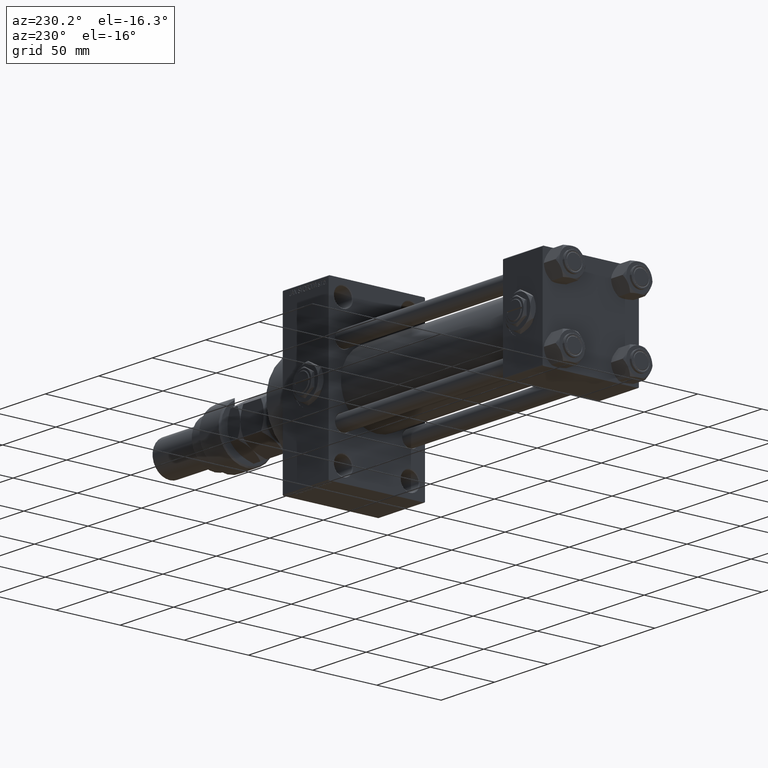
[diagram: clean part render]
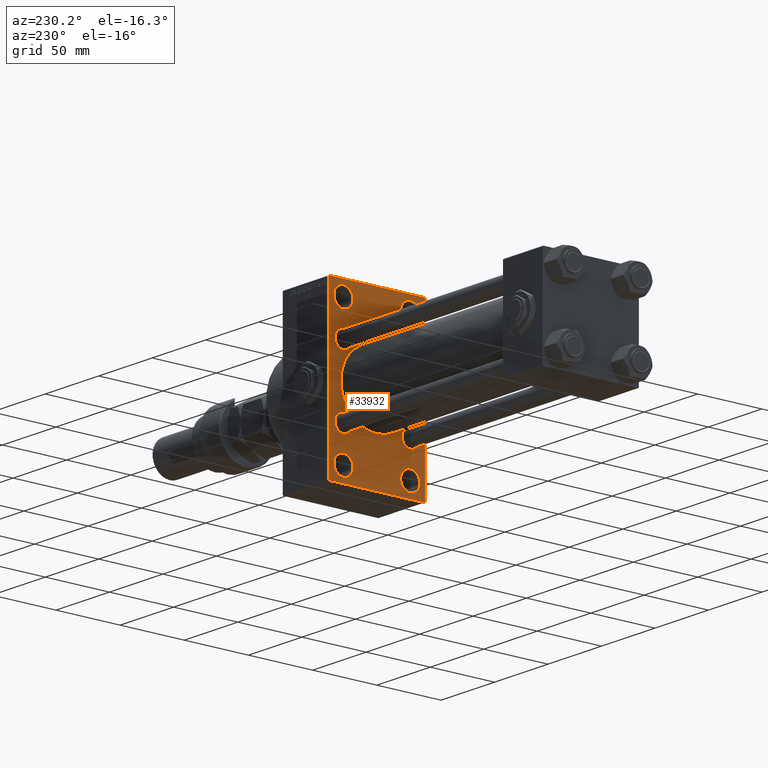
[diagram: same view with one face highlighted and labeled with its STEP entity id]
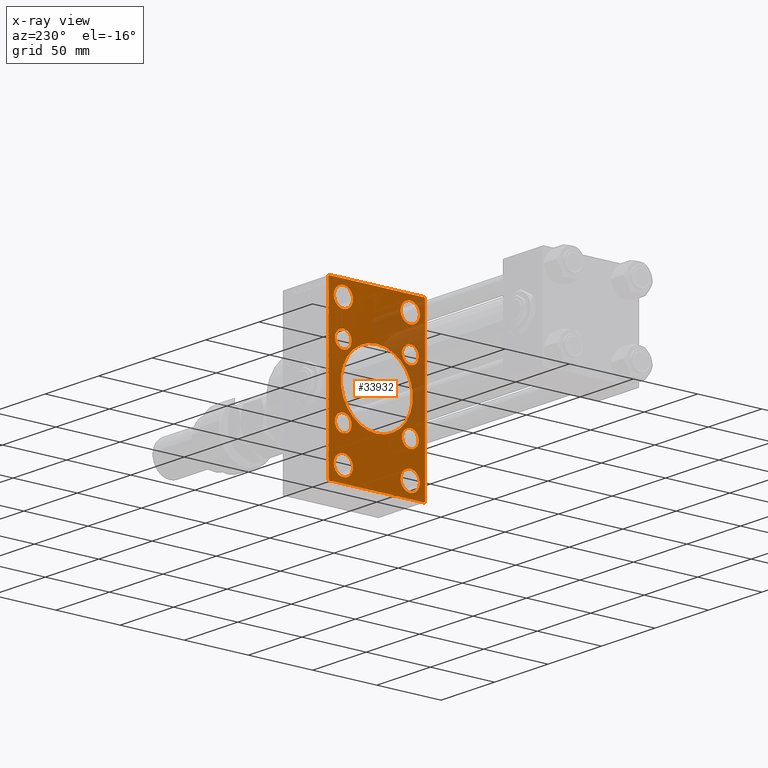
[diagram: x-ray of the same camera — body ghosted, the highlighted face saturated]
A machine part, auxiliary view. The second image highlights one B-rep face of the part: STEP entity #33932.
The next image is the same camera in x-ray: the body ghosted, the highlighted face saturated — about 21% of this face is hidden behind the body in this view.
In plain terms, the highlighted planar face has unit normal (-1, 0, 0).
Its self-contained STEP definition (entity closure, byte-faithful):
#121 = DIRECTION ( 'NONE',  ( 1.000000000000000000, -0.000000000000000000, 0.000000000000000000 ) ) ;
#1658 = VERTEX_POINT ( 'NONE', #31273 ) ;
#1690 = CARTESIAN_POINT ( 'NONE',  ( 200.0000000000000000, 37.49999999999999289, -64.00000000000000000 ) ) ;
#1700 = ORIENTED_EDGE ( 'NONE', *, *, #30654, .T. ) ;
#1946 = DIRECTION ( 'NONE',  ( 0.000000000000000000, -1.000000000000000000, -1.850371707708594563E-16 ) ) ;
#2157 = VECTOR ( 'NONE', #15879, 999.9999999999998863 ) ;
#2424 = LINE ( 'NONE', #20670, #4872 ) ;
#2442 = AXIS2_PLACEMENT_3D ( 'NONE', #48156, #11810, #40218 ) ;
#2492 = LINE ( 'NONE', #43877, #9111 ) ;
#2524 = FACE_BOUND ( 'NONE', #19531, .T. ) ;
#2670 = VERTEX_POINT ( 'NONE', #49018 ) ;
#3048 = PLANE ( 'NONE',  #33940 ) ;
#3191 = EDGE_LOOP ( 'NONE', ( #49239, #24765 ) ) ;
#3253 = ORIENTED_EDGE ( 'NONE', *, *, #46008, .T. ) ;
#3731 = VERTEX_POINT ( 'NONE', #7202 ) ;
#4059 = ORIENTED_EDGE ( 'NONE', *, *, #13224, .F. ) ;
#4125 = AXIS2_PLACEMENT_3D ( 'NONE', #14606, #7179, #52006 ) ;
#4395 = DIRECTION ( 'NONE',  ( 0.000000000000000000, 0.000000000000000000, 1.000000000000000000 ) ) ;
#4449 = VECTOR ( 'NONE', #49513, 1000.000000000000000 ) ;
#4511 = DIRECTION ( 'NONE',  ( 0.000000000000000000, 0.000000000000000000, 1.000000000000000000 ) ) ;
#4872 = VECTOR ( 'NONE', #8720, 1000.000000000000114 ) ;
#4893 = DIRECTION ( 'NONE',  ( 1.000000000000000000, -0.000000000000000000, 0.000000000000000000 ) ) ;
#4929 = CIRCLE ( 'NONE', #10854, 7.500000000000007105 ) ;
#4956 = CIRCLE ( 'NONE', #4125, 6.500000000000008882 ) ;
#5295 = ORIENTED_EDGE ( 'NONE', *, *, #42075, .T. ) ;
#5608 = VERTEX_POINT ( 'NONE', #41219 ) ;
#5745 = ORIENTED_EDGE ( 'NONE', *, *, #45970, .T. ) ;
#5983 = CARTESIAN_POINT ( 'NONE',  ( 200.0000000000000000, -50.49999999999972999, 50.50000000000042633 ) ) ;
#5988 = DIRECTION ( 'NONE',  ( 0.000000000000000000, 0.000000000000000000, 1.000000000000000000 ) ) ;
#7041 = FACE_BOUND ( 'NONE', #35056, .T. ) ;
#7179 = DIRECTION ( 'NONE',  ( 1.000000000000000000, -0.000000000000000000, 0.000000000000000000 ) ) ;
#7202 = CARTESIAN_POINT ( 'NONE',  ( 200.0000000000000000, 26.14999999999999858, -32.65000000000001279 ) ) ;
#7256 = CARTESIAN_POINT ( 'NONE',  ( 200.0000000000000000, 26.00000000000000000, -44.99999999999998579 ) ) ;
#7302 = FACE_BOUND ( 'NONE', #48529, .T. ) ;
#7384 = EDGE_LOOP ( 'NONE', ( #11506, #37115 ) ) ;
#7864 = DIRECTION ( 'NONE',  ( 1.000000000000000000, -0.000000000000000000, 0.000000000000000000 ) ) ;
#7878 = DIRECTION ( 'NONE',  ( 1.000000000000000000, 0.000000000000000000, 0.000000000000000000 ) ) ;
#8138 = CARTESIAN_POINT ( 'NONE',  ( 200.0000000000000000, -2.602085213965210642E-15, 0.000000000000000000 ) ) ;
#8419 = CIRCLE ( 'NONE', #37204, 7.500000000000007105 ) ;
#8461 = EDGE_LOOP ( 'NONE', ( #9089, #26974 ) ) ;
#8720 = DIRECTION ( 'NONE',  ( 0.000000000000000000, -0.7071067811865376918, 0.7071067811865573427 ) ) ;
#8851 = ORIENTED_EDGE ( 'NONE', *, *, #26196, .F. ) ;
#9089 = ORIENTED_EDGE ( 'NONE', *, *, #31137, .T. ) ;
#9111 = VECTOR ( 'NONE', #27705, 1000.000000000000114 ) ;
#9212 = VERTEX_POINT ( 'NONE', #11317 ) ;
#9580 = AXIS2_PLACEMENT_3D ( 'NONE', #34652, #26685, #50816 ) ;
#9664 = VERTEX_POINT ( 'NONE', #45634 ) ;
#9727 = CARTESIAN_POINT ( 'NONE',  ( 200.0000000000000000, -37.49999999999999289, -63.50000000000002842 ) ) ;
#9878 = CARTESIAN_POINT ( 'NONE',  ( 200.0000000000000000, -2.602085213965210642E-15, 28.00000000000000000 ) ) ;
#9959 = AXIS2_PLACEMENT_3D ( 'NONE', #18618, #51497, #50975 ) ;
#10076 = AXIS2_PLACEMENT_3D ( 'NONE', #18324, #51208, #42218 ) ;
#10120 = AXIS2_PLACEMENT_3D ( 'NONE', #33034, #44705, #21073 ) ;
#10258 = EDGE_CURVE ( 'NONE', #1658, #49600, #34125, .T. ) ;
#10758 = AXIS2_PLACEMENT_3D ( 'NONE', #8138, #7878, #16092 ) ;
#10854 = AXIS2_PLACEMENT_3D ( 'NONE', #39421, #42604, #5988 ) ;
#11281 = FACE_BOUND ( 'NONE', #19023, .T. ) ;
#11317 = CARTESIAN_POINT ( 'NONE',  ( 200.0000000000000000, 37.00000000000004974, -64.00000000000000000 ) ) ;
#11375 = LINE ( 'NONE', #32076, #2157 ) ;
#11506 = ORIENTED_EDGE ( 'NONE', *, *, #27712, .T. ) ;
#11556 = CARTESIAN_POINT ( 'NONE',  ( 200.0000000000000000, 26.00000000000000000, -52.49999999999999289 ) ) ;
#11792 = CARTESIAN_POINT ( 'NONE',  ( 200.0000000000000000, -25.99999999999999645, -52.49999999999999289 ) ) ;
#11810 = DIRECTION ( 'NONE',  ( 1.000000000000000000, -0.000000000000000000, 0.000000000000000000 ) ) ;
#12161 = CARTESIAN_POINT ( 'NONE',  ( 200.0000000000000000, 8.269258236473784371E-16, -28.00000000000000000 ) ) ;
#12524 = EDGE_CURVE ( 'NONE', #13988, #44733, #29895, .T. ) ;
#12696 = DIRECTION ( 'NONE',  ( 0.000000000000000000, -5.421010862427522170E-17, -1.000000000000000000 ) ) ;
#12848 = CARTESIAN_POINT ( 'NONE',  ( 200.0000000000000000, -26.14999999999999147, -26.15000000000000924 ) ) ;
#13224 = EDGE_CURVE ( 'NONE', #13988, #20082, #49267, .T. ) ;
#13321 = VERTEX_POINT ( 'NONE', #18195 ) ;
#13837 = EDGE_CURVE ( 'NONE', #9212, #5608, #25826, .T. ) ;
#13988 = VERTEX_POINT ( 'NONE', #18836 ) ;
#14606 = CARTESIAN_POINT ( 'NONE',  ( 200.0000000000000000, -26.14999999999999147, 26.15000000000000924 ) ) ;
#14921 = EDGE_CURVE ( 'NONE', #36669, #37837, #35051, .T. ) ;
#14949 = CARTESIAN_POINT ( 'NONE',  ( 200.0000000000000000, 37.49999999999999289, -63.50000000000007105 ) ) ;
#14964 = DIRECTION ( 'NONE',  ( 0.000000000000000000, 0.000000000000000000, 1.000000000000000000 ) ) ;
#15361 = EDGE_CURVE ( 'NONE', #40034, #3731, #38438, .T. ) ;
#15879 = DIRECTION ( 'NONE',  ( -0.000000000000000000, -0.7071067811865574537, -0.7071067811865376918 ) ) ;
#16032 = CIRCLE ( 'NONE', #22794, 7.500000000000007105 ) ;
#16092 = DIRECTION ( 'NONE',  ( 0.000000000000000000, 0.000000000000000000, -1.000000000000000000 ) ) ;
#16318 = DIRECTION ( 'NONE',  ( 0.000000000000000000, 0.000000000000000000, 1.000000000000000000 ) ) ;
#16857 = AXIS2_PLACEMENT_3D ( 'NONE', #18450, #50812, #50041 ) ;
#17124 = CARTESIAN_POINT ( 'NONE',  ( 200.0000000000000000, 26.00000000000000000, 44.99999999999998579 ) ) ;
#17581 = CARTESIAN_POINT ( 'NONE',  ( 200.0000000000000000, -26.14999999999999147, -19.65000000000000213 ) ) ;
#17595 = AXIS2_PLACEMENT_3D ( 'NONE', #27442, #31150, #14964 ) ;
#17825 = CIRCLE ( 'NONE', #38185, 7.500000000000007105 ) ;
#17862 = DIRECTION ( 'NONE',  ( 1.000000000000000000, -0.000000000000000000, 0.000000000000000000 ) ) ;
#18087 = ORIENTED_EDGE ( 'NONE', *, *, #33356, .T. ) ;
#18195 = CARTESIAN_POINT ( 'NONE',  ( 200.0000000000000000, -25.99999999999999645, 60.00000000000000711 ) ) ;
#18324 = CARTESIAN_POINT ( 'NONE',  ( 200.0000000000000000, 26.14999999999999858, 26.15000000000000213 ) ) ;
#18450 = CARTESIAN_POINT ( 'NONE',  ( 200.0000000000000000, -25.99999999999999645, 52.50000000000000000 ) ) ;
#18618 = CARTESIAN_POINT ( 'NONE',  ( 200.0000000000000000, 26.14999999999999858, -26.15000000000000213 ) ) ;
#18798 = VECTOR ( 'NONE', #37341, 1000.000000000000000 ) ;
#18836 = CARTESIAN_POINT ( 'NONE',  ( 200.0000000000000000, -37.49999999999999289, 63.50000000000000000 ) ) ;
#18983 = CARTESIAN_POINT ( 'NONE',  ( 200.0000000000000000, 0.000000000000000000, 0.000000000000000000 ) ) ;
#19023 = EDGE_LOOP ( 'NONE', ( #24864, #38616 ) ) ;
#19400 = VERTEX_POINT ( 'NONE', #48282 ) ;
#19531 = EDGE_LOOP ( 'NONE', ( #23144, #22155 ) ) ;
#20082 = VERTEX_POINT ( 'NONE', #9727 ) ;
#20533 = CIRCLE ( 'NONE', #47629, 7.500000000000007105 ) ;
#20573 = DIRECTION ( 'NONE',  ( 0.000000000000000000, 0.000000000000000000, 1.000000000000000000 ) ) ;
#20670 = CARTESIAN_POINT ( 'NONE',  ( 200.0000000000000000, -50.50000000000054001, -50.49999999999913314 ) ) ;
#20764 = CARTESIAN_POINT ( 'NONE',  ( 200.0000000000000000, 26.14999999999999858, 19.64999999999999147 ) ) ;
#21073 = DIRECTION ( 'NONE',  ( 0.000000000000000000, 0.000000000000000000, -1.000000000000000000 ) ) ;
#21089 = CIRCLE ( 'NONE', #2442, 6.500000000000008882 ) ;
#21169 = EDGE_LOOP ( 'NONE', ( #42802, #18087 ) ) ;
#21686 = DIRECTION ( 'NONE',  ( 1.000000000000000000, -0.000000000000000000, 0.000000000000000000 ) ) ;
#22137 = CARTESIAN_POINT ( 'NONE',  ( 200.0000000000000000, -26.14999999999999147, -32.65000000000001990 ) ) ;
#22155 = ORIENTED_EDGE ( 'NONE', *, *, #33784, .T. ) ;
#22733 = VERTEX_POINT ( 'NONE', #42624 ) ;
#22794 = AXIS2_PLACEMENT_3D ( 'NONE', #11556, #7864, #4395 ) ;
#23144 = ORIENTED_EDGE ( 'NONE', *, *, #25668, .T. ) ;
#23235 = VERTEX_POINT ( 'NONE', #42041 ) ;
#23597 = VECTOR ( 'NONE', #49583, 1000.000000000000000 ) ;
#23669 = AXIS2_PLACEMENT_3D ( 'NONE', #12848, #17862, #37004 ) ;
#23978 = VERTEX_POINT ( 'NONE', #37318 ) ;
#24158 = CARTESIAN_POINT ( 'NONE',  ( 200.0000000000000000, 26.00000000000000000, 52.49999999999999289 ) ) ;
#24159 = EDGE_CURVE ( 'NONE', #19400, #9664, #2492, .T. ) ;
#24738 = CARTESIAN_POINT ( 'NONE',  ( 200.0000000000000000, -25.99999999999999645, -60.00000000000000000 ) ) ;
#24765 = ORIENTED_EDGE ( 'NONE', *, *, #32869, .T. ) ;
#24864 = ORIENTED_EDGE ( 'NONE', *, *, #25955, .T. ) ;
#25668 = EDGE_CURVE ( 'NONE', #23978, #29132, #4929, .T. ) ;
#25667 = AXIS2_PLACEMENT_3D ( 'NONE', #32569, #44750, #48727 ) ;
#25826 = LINE ( 'NONE', #1690, #40105 ) ;
#25955 = EDGE_CURVE ( 'NONE', #23235, #47594, #4956, .T. ) ;
#26196 = EDGE_CURVE ( 'NONE', #19400, #44733, #33430, .T. ) ;
#26291 = EDGE_LOOP ( 'NONE', ( #1700, #35587 ) ) ;
#26685 = DIRECTION ( 'NONE',  ( 1.000000000000000000, -0.000000000000000000, 0.000000000000000000 ) ) ;
#26974 = ORIENTED_EDGE ( 'NONE', *, *, #14921, .T. ) ;
#27442 = CARTESIAN_POINT ( 'NONE',  ( 200.0000000000000000, 26.14999999999999858, 26.15000000000000213 ) ) ;
#27471 = FACE_BOUND ( 'NONE', #26291, .T. ) ;
#27705 = DIRECTION ( 'NONE',  ( 0.000000000000000000, 0.7071067811865474617, -0.7071067811865474617 ) ) ;
#27712 = EDGE_CURVE ( 'NONE', #49600, #1658, #16032, .T. ) ;
#27833 = VERTEX_POINT ( 'NONE', #17124 ) ;
#27904 = VERTEX_POINT ( 'NONE', #14949 ) ;
#28407 = DIRECTION ( 'NONE',  ( 1.000000000000000000, -0.000000000000000000, 0.000000000000000000 ) ) ;
#28589 = CARTESIAN_POINT ( 'NONE',  ( 200.0000000000000000, -37.49999999999999289, 63.99999999999997158 ) ) ;
#28594 = CARTESIAN_POINT ( 'NONE',  ( 200.0000000000000000, 26.14999999999999858, -19.64999999999999503 ) ) ;
#28877 = AXIS2_PLACEMENT_3D ( 'NONE', #24158, #40349, #4511 ) ;
#28946 = CARTESIAN_POINT ( 'NONE',  ( 200.0000000000000000, 26.14999999999999858, -26.15000000000000213 ) ) ;
#29132 = VERTEX_POINT ( 'NONE', #24738 ) ;
#29895 = LINE ( 'NONE', #5983, #18798 ) ;
#30531 = CIRCLE ( 'NONE', #28877, 7.500000000000007105 ) ;
#30654 = EDGE_CURVE ( 'NONE', #13321, #44262, #46485, .T. ) ;
#30813 = EDGE_CURVE ( 'NONE', #44262, #13321, #8419, .T. ) ;
#30869 = EDGE_CURVE ( 'NONE', #47594, #23235, #21089, .T. ) ;
#31137 = EDGE_CURVE ( 'NONE', #37837, #36669, #32997, .T. ) ;
#31150 = DIRECTION ( 'NONE',  ( 1.000000000000000000, -0.000000000000000000, 0.000000000000000000 ) ) ;
#31273 = CARTESIAN_POINT ( 'NONE',  ( 200.0000000000000000, 26.00000000000000000, -60.00000000000000000 ) ) ;
#32076 = CARTESIAN_POINT ( 'NONE',  ( 200.0000000000000000, 50.49999999999950973, -50.50000000000090949 ) ) ;
#32569 = CARTESIAN_POINT ( 'NONE',  ( 200.0000000000000000, 26.00000000000000000, -52.49999999999999289 ) ) ;
#32867 = CARTESIAN_POINT ( 'NONE',  ( 200.0000000000000000, 37.50000000000000000, 63.99999999999998579 ) ) ;
#32869 = EDGE_CURVE ( 'NONE', #36589, #38727, #48287, .T. ) ;
#32997 = CIRCLE ( 'NONE', #23669, 6.500000000000008882 ) ;
#33034 = CARTESIAN_POINT ( 'NONE',  ( 200.0000000000000000, -2.602085213965210642E-15, 0.000000000000000000 ) ) ;
#33356 = EDGE_CURVE ( 'NONE', #27833, #2670, #30531, .T. ) ;
#33430 = LINE ( 'NONE', #46128, #23597 ) ;
#33784 = EDGE_CURVE ( 'NONE', #29132, #23978, #17825, .T. ) ;
#33932 = ADVANCED_FACE ( 'NONE', ( #27471, #2524, #35705, #34909, #11281, #7302, #7041, #51869, #46828, #51074 ), #3048, .T. ) ;
#33940 = AXIS2_PLACEMENT_3D ( 'NONE', #18983, #35434, #51600 ) ;
#34125 = CIRCLE ( 'NONE', #25667, 7.500000000000007105 ) ;
#34652 = CARTESIAN_POINT ( 'NONE',  ( 200.0000000000000000, -26.14999999999999147, -26.15000000000000924 ) ) ;
#34909 = FACE_BOUND ( 'NONE', #21169, .T. ) ;
#35051 = CIRCLE ( 'NONE', #9580, 6.500000000000008882 ) ;
#35056 = EDGE_LOOP ( 'NONE', ( #49489, #5745 ) ) ;
#35361 = CIRCLE ( 'NONE', #10758, 28.00000000000000000 ) ;
#35434 = DIRECTION ( 'NONE',  ( -1.000000000000000000, 0.000000000000000000, -0.000000000000000000 ) ) ;
#35587 = ORIENTED_EDGE ( 'NONE', *, *, #30813, .T. ) ;
#35705 = FACE_BOUND ( 'NONE', #7384, .T. ) ;
#36322 = VERTEX_POINT ( 'NONE', #20764 ) ;
#36589 = VERTEX_POINT ( 'NONE', #12161 ) ;
#36669 = VERTEX_POINT ( 'NONE', #22137 ) ;
#37004 = DIRECTION ( 'NONE',  ( 0.000000000000000000, 0.000000000000000000, 1.000000000000000000 ) ) ;
#37021 = EDGE_CURVE ( 'NONE', #2670, #27833, #20533, .T. ) ;
#37115 = ORIENTED_EDGE ( 'NONE', *, *, #10258, .T. ) ;
#37116 = DIRECTION ( 'NONE',  ( 0.000000000000000000, 0.000000000000000000, 1.000000000000000000 ) ) ;
#37175 = ORIENTED_EDGE ( 'NONE', *, *, #12524, .T. ) ;
#37204 = AXIS2_PLACEMENT_3D ( 'NONE', #44186, #4893, #20573 ) ;
#37234 = ORIENTED_EDGE ( 'NONE', *, *, #24159, .T. ) ;
#37318 = CARTESIAN_POINT ( 'NONE',  ( 200.0000000000000000, -25.99999999999999645, -44.99999999999998579 ) ) ;
#37341 = DIRECTION ( 'NONE',  ( -0.000000000000000000, 0.7071067811865524577, 0.7071067811865426878 ) ) ;
#37837 = VERTEX_POINT ( 'NONE', #17581 ) ;
#38185 = AXIS2_PLACEMENT_3D ( 'NONE', #11792, #121, #16318 ) ;
#38438 = CIRCLE ( 'NONE', #45216, 6.500000000000008882 ) ;
#38505 = CARTESIAN_POINT ( 'NONE',  ( 200.0000000000000000, -37.00000000000001421, 63.99999999999997158 ) ) ;
#38616 = ORIENTED_EDGE ( 'NONE', *, *, #30869, .T. ) ;
#38727 = VERTEX_POINT ( 'NONE', #9878 ) ;
#38882 = CIRCLE ( 'NONE', #10076, 6.500000000000008882 ) ;
#39421 = CARTESIAN_POINT ( 'NONE',  ( 200.0000000000000000, -25.99999999999999645, -52.49999999999999289 ) ) ;
#40034 = VERTEX_POINT ( 'NONE', #28594 ) ;
#40049 = CARTESIAN_POINT ( 'NONE',  ( 200.0000000000000000, 26.00000000000000000, 52.49999999999999289 ) ) ;
#40105 = VECTOR ( 'NONE', #1946, 1000.000000000000000 ) ;
#40218 = DIRECTION ( 'NONE',  ( 0.000000000000000000, 0.000000000000000000, 1.000000000000000000 ) ) ;
#40349 = DIRECTION ( 'NONE',  ( 1.000000000000000000, -0.000000000000000000, 0.000000000000000000 ) ) ;
#41219 = CARTESIAN_POINT ( 'NONE',  ( 200.0000000000000000, -37.00000000000002132, -64.00000000000001421 ) ) ;
#41340 = LINE ( 'NONE', #32867, #47191 ) ;
#42041 = CARTESIAN_POINT ( 'NONE',  ( 200.0000000000000000, -26.14999999999999147, 32.65000000000001990 ) ) ;
#42075 = EDGE_CURVE ( 'NONE', #27904, #9212, #11375, .T. ) ;
#42171 = CARTESIAN_POINT ( 'NONE',  ( 200.0000000000000000, -26.14999999999999147, 19.65000000000000213 ) ) ;
#42218 = DIRECTION ( 'NONE',  ( 0.000000000000000000, 0.000000000000000000, 1.000000000000000000 ) ) ;
#42566 = ORIENTED_EDGE ( 'NONE', *, *, #48730, .T. ) ;
#42604 = DIRECTION ( 'NONE',  ( 1.000000000000000000, -0.000000000000000000, 0.000000000000000000 ) ) ;
#42624 = CARTESIAN_POINT ( 'NONE',  ( 200.0000000000000000, 26.14999999999999858, 32.65000000000001990 ) ) ;
#42802 = ORIENTED_EDGE ( 'NONE', *, *, #37021, .T. ) ;
#42865 = CARTESIAN_POINT ( 'NONE',  ( 200.0000000000000000, -25.99999999999999645, 44.99999999999999289 ) ) ;
#43877 = CARTESIAN_POINT ( 'NONE',  ( 200.0000000000000000, 50.49999999999998579, 50.49999999999998579 ) ) ;
#44186 = CARTESIAN_POINT ( 'NONE',  ( 200.0000000000000000, -25.99999999999999645, 52.50000000000000000 ) ) ;
#44262 = VERTEX_POINT ( 'NONE', #42865 ) ;
#44705 = DIRECTION ( 'NONE',  ( 1.000000000000000000, 0.000000000000000000, 0.000000000000000000 ) ) ;
#44733 = VERTEX_POINT ( 'NONE', #38505 ) ;
#44750 = DIRECTION ( 'NONE',  ( 1.000000000000000000, -0.000000000000000000, 0.000000000000000000 ) ) ;
#45096 = EDGE_CURVE ( 'NONE', #9664, #27904, #41340, .T. ) ;
#45186 = ORIENTED_EDGE ( 'NONE', *, *, #45646, .T. ) ;
#45216 = AXIS2_PLACEMENT_3D ( 'NONE', #28946, #28407, #45365 ) ;
#45365 = DIRECTION ( 'NONE',  ( 0.000000000000000000, 0.000000000000000000, 1.000000000000000000 ) ) ;
#45387 = EDGE_CURVE ( 'NONE', #38727, #36589, #35361, .T. ) ;
#45634 = CARTESIAN_POINT ( 'NONE',  ( 200.0000000000000000, 37.50000000000000000, 63.49999999999998579 ) ) ;
#45646 = EDGE_CURVE ( 'NONE', #22733, #36322, #47221, .T. ) ;
#45970 = EDGE_CURVE ( 'NONE', #3731, #40034, #46395, .T. ) ;
#46008 = EDGE_CURVE ( 'NONE', #5608, #20082, #2424, .T. ) ;
#46128 = CARTESIAN_POINT ( 'NONE',  ( 200.0000000000000000, 37.50000000000000000, 63.99999999999998579 ) ) ;
#46395 = CIRCLE ( 'NONE', #9959, 6.500000000000008882 ) ;
#46485 = CIRCLE ( 'NONE', #16857, 7.500000000000007105 ) ;
#46828 = FACE_BOUND ( 'NONE', #3191, .T. ) ;
#46851 = ORIENTED_EDGE ( 'NONE', *, *, #13837, .T. ) ;
#47191 = VECTOR ( 'NONE', #12696, 1000.000000000000000 ) ;
#47221 = CIRCLE ( 'NONE', #17595, 6.500000000000008882 ) ;
#47594 = VERTEX_POINT ( 'NONE', #42171 ) ;
#47629 = AXIS2_PLACEMENT_3D ( 'NONE', #40049, #21686, #37116 ) ;
#48156 = CARTESIAN_POINT ( 'NONE',  ( 200.0000000000000000, -26.14999999999999147, 26.15000000000000924 ) ) ;
#48282 = CARTESIAN_POINT ( 'NONE',  ( 200.0000000000000000, 37.00000000000000000, 63.99999999999998579 ) ) ;
#48287 = CIRCLE ( 'NONE', #10120, 28.00000000000000000 ) ;
#48529 = EDGE_LOOP ( 'NONE', ( #45186, #42566 ) ) ;
#48727 = DIRECTION ( 'NONE',  ( 0.000000000000000000, 0.000000000000000000, 1.000000000000000000 ) ) ;
#48730 = EDGE_CURVE ( 'NONE', #36322, #22733, #38882, .T. ) ;
#49018 = CARTESIAN_POINT ( 'NONE',  ( 200.0000000000000000, 26.00000000000000000, 60.00000000000000000 ) ) ;
#49084 = EDGE_LOOP ( 'NONE', ( #46851, #3253, #4059, #37175, #8851, #37234, #50379, #5295 ) ) ;
#49239 = ORIENTED_EDGE ( 'NONE', *, *, #45387, .T. ) ;
#49267 = LINE ( 'NONE', #28589, #4449 ) ;
#49489 = ORIENTED_EDGE ( 'NONE', *, *, #15361, .T. ) ;
#49513 = DIRECTION ( 'NONE',  ( 0.000000000000000000, 0.000000000000000000, -1.000000000000000000 ) ) ;
#49583 = DIRECTION ( 'NONE',  ( 0.000000000000000000, -1.000000000000000000, -1.850371707708594563E-16 ) ) ;
#49600 = VERTEX_POINT ( 'NONE', #7256 ) ;
#50041 = DIRECTION ( 'NONE',  ( 0.000000000000000000, 0.000000000000000000, 1.000000000000000000 ) ) ;
#50379 = ORIENTED_EDGE ( 'NONE', *, *, #45096, .T. ) ;
#50812 = DIRECTION ( 'NONE',  ( 1.000000000000000000, -0.000000000000000000, 0.000000000000000000 ) ) ;
#50816 = DIRECTION ( 'NONE',  ( 0.000000000000000000, 0.000000000000000000, 1.000000000000000000 ) ) ;
#50975 = DIRECTION ( 'NONE',  ( 0.000000000000000000, 0.000000000000000000, 1.000000000000000000 ) ) ;
#51074 = FACE_OUTER_BOUND ( 'NONE', #49084, .T. ) ;
#51208 = DIRECTION ( 'NONE',  ( 1.000000000000000000, -0.000000000000000000, 0.000000000000000000 ) ) ;
#51497 = DIRECTION ( 'NONE',  ( 1.000000000000000000, -0.000000000000000000, 0.000000000000000000 ) ) ;
#51600 = DIRECTION ( 'NONE',  ( -0.000000000000000000, 0.000000000000000000, 1.000000000000000000 ) ) ;
#51869 = FACE_BOUND ( 'NONE', #8461, .T. ) ;
#52006 = DIRECTION ( 'NONE',  ( 0.000000000000000000, 0.000000000000000000, 1.000000000000000000 ) ) ;